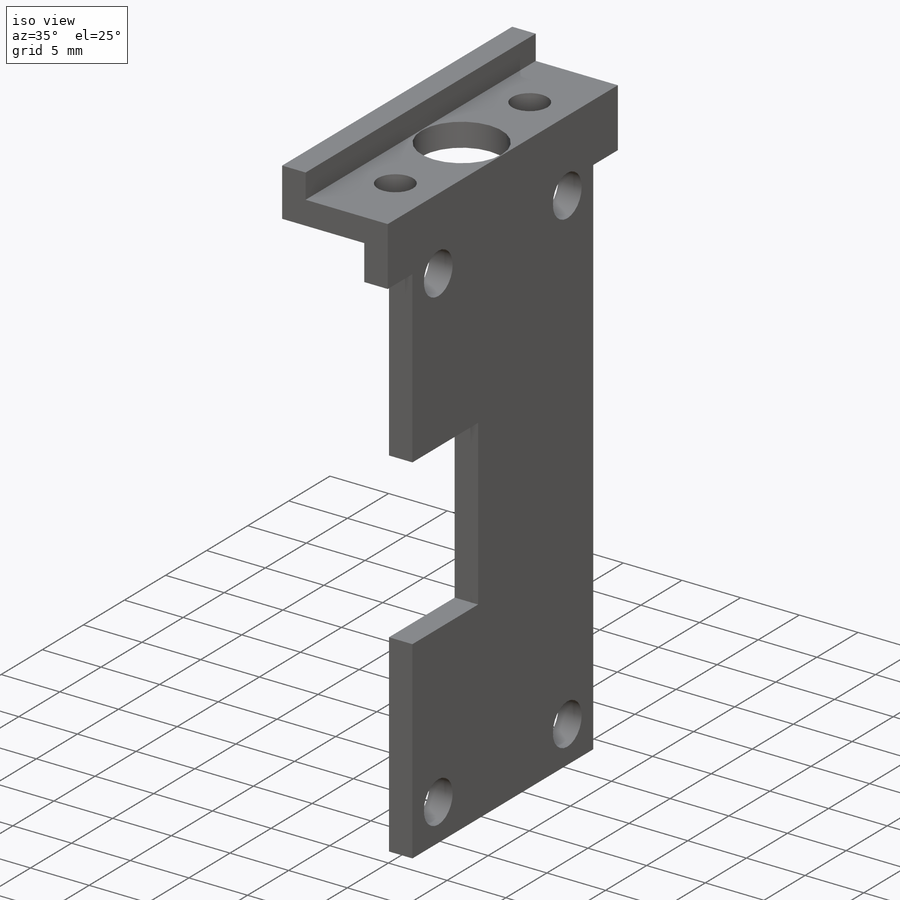
[diagram: iso view]
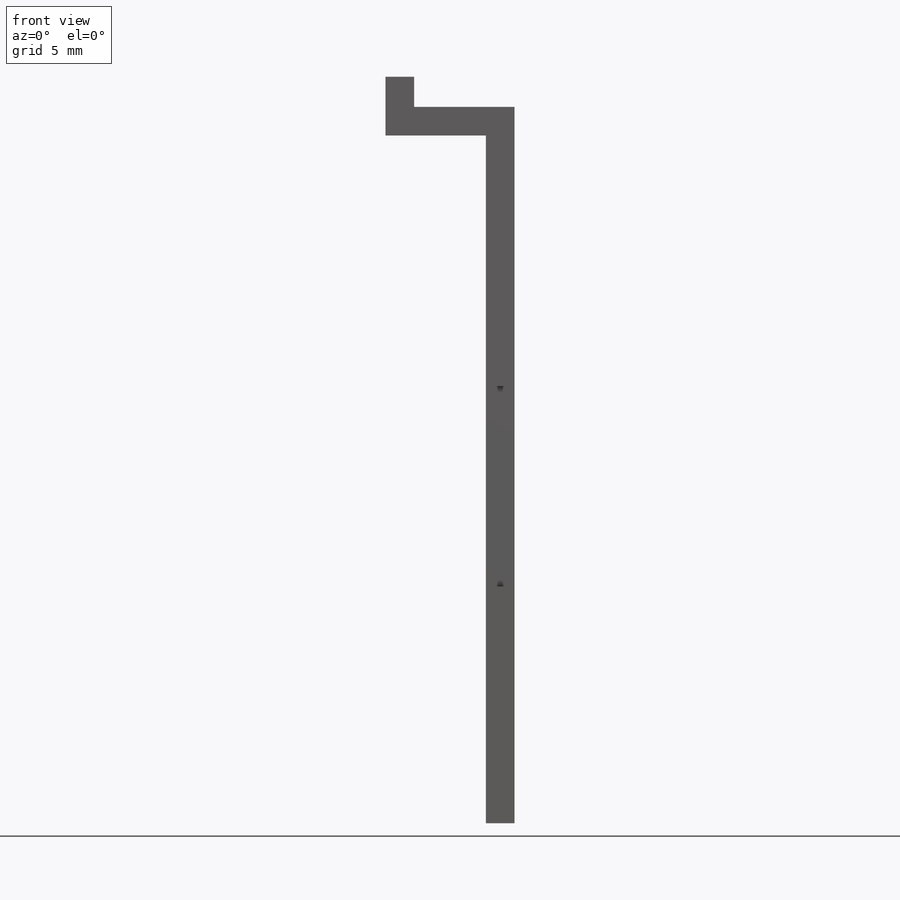
[diagram: front view]
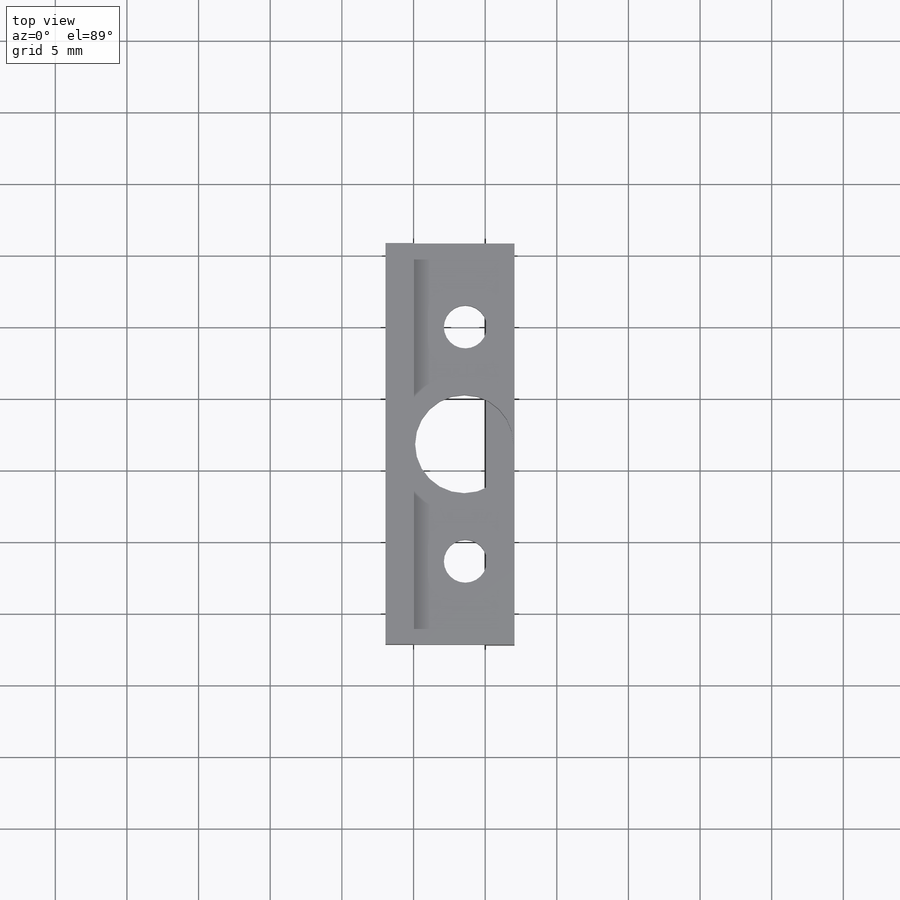
[diagram: top view]
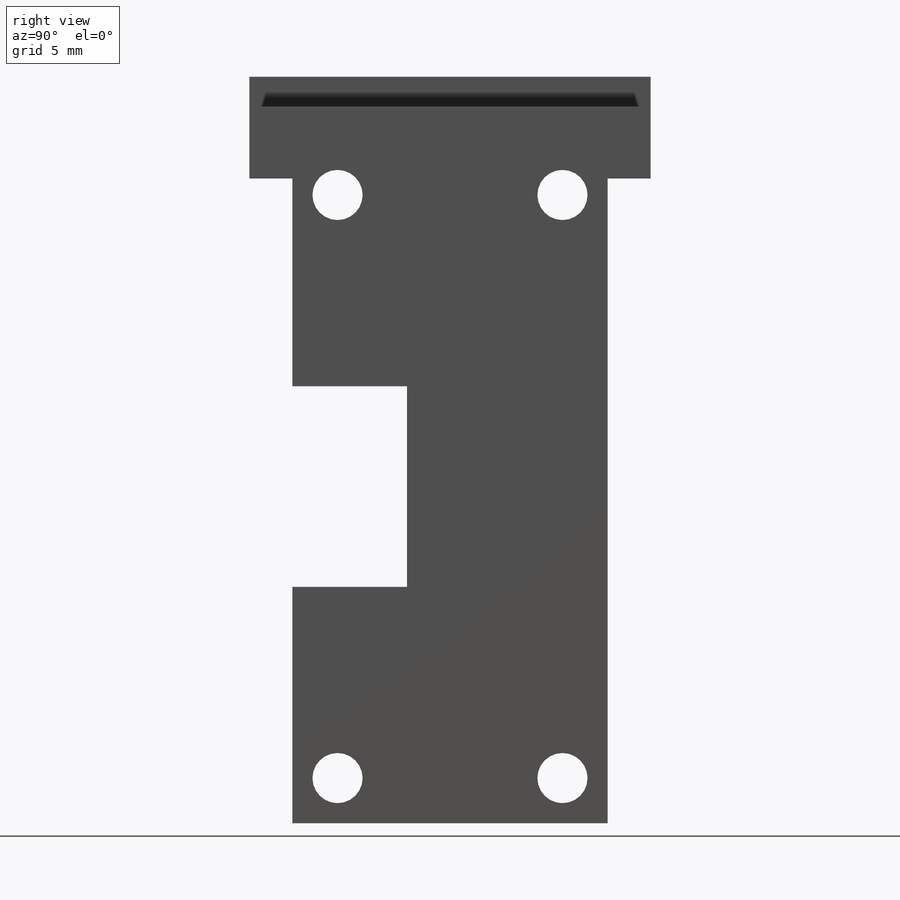
[diagram: right view]
SOLIDWORKS PART (.sldprt)
format: sldprt  version: not decoded by parser v0  size: 237,056 bytes
history: native  units: mm
features: sketch x5, cut_extrude x4, material x1, extrude x1 (+13 scaffold rows collapsed)
feature tree (24):
  scaffold x13  (default folders/planes/origin — collapsed)
  material  "Material <not specified>"
  sketch  "Sketch3"  dims[D1=2.0mm D2=4.1mm D3=7.0mm D4=2.0mm D5=50.0mm D6=2.0mm D7=2.0mm]
  extrude  "Boss-Extrude3"  Depth=28mm
  sketch  "Sketch4"  dims[c1.D1=6.86mm c1.D2=3.0mm c1.D3=2.0mm c1.D4=3.0mm c1.D5=2.0mm c1.D6=2.0mm c1.D7=2.0mm c1.D8=6.86mm c1.D9=3.0mm c2.D3=3.43mm c2.D5=3.43mm c2.D6=8.178mm c2.D7=8.178mm c2.D8=14.0mm c2.D9=~5.822346mm]
  cut_extrude  "Cut-Extrude1"  Depth=2mm
  sketch  "Sketch6"  dims[D1=22.0mm D2=3.0mm D3=5.0mm D4=5.0mm]
  cut_extrude  "Cut-Extrude4"  Depth=2mm
  sketch  "Sketch7"  dims[D1=3.5mm D2=3.5mm D3=3.5mm D4=3.5mm]
  cut_extrude  "Cut-Extrude5"  [1 undecoded]
  sketch  "Sketch10"  dims[D1=1.0mm D2=1.0mm D3=1.0mm]
  cut_extrude  "Cut-Extrude7"  [1 undecoded]
decode coverage: 8 of 10 modeling features carry decoded parameters
note: ~ marks probable driven/reference dimensions
note: 2 parameter values undecoded
note: suppression state not decoded; provenance and decode notes live in map.json
